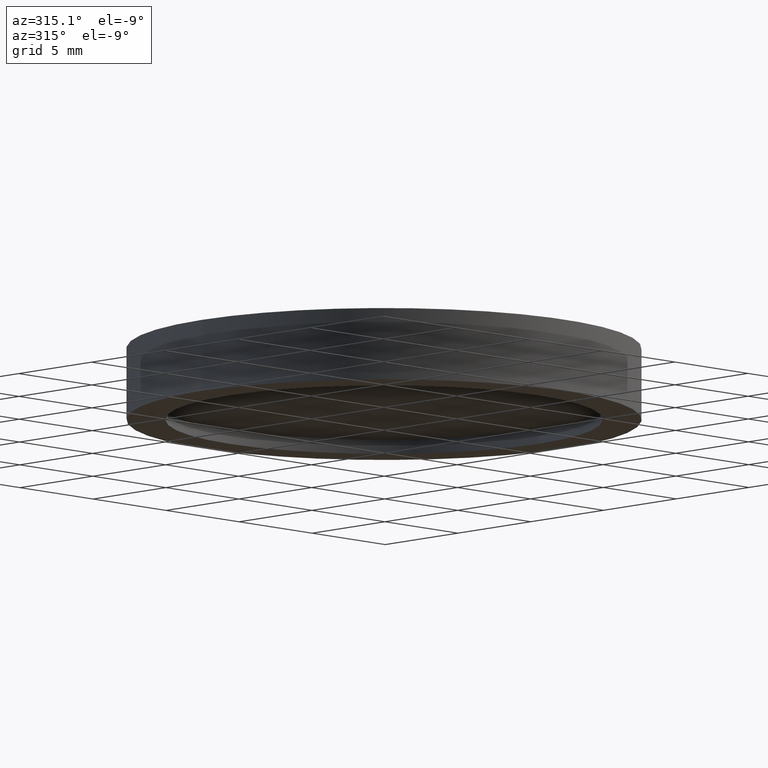
[diagram: clean part render]
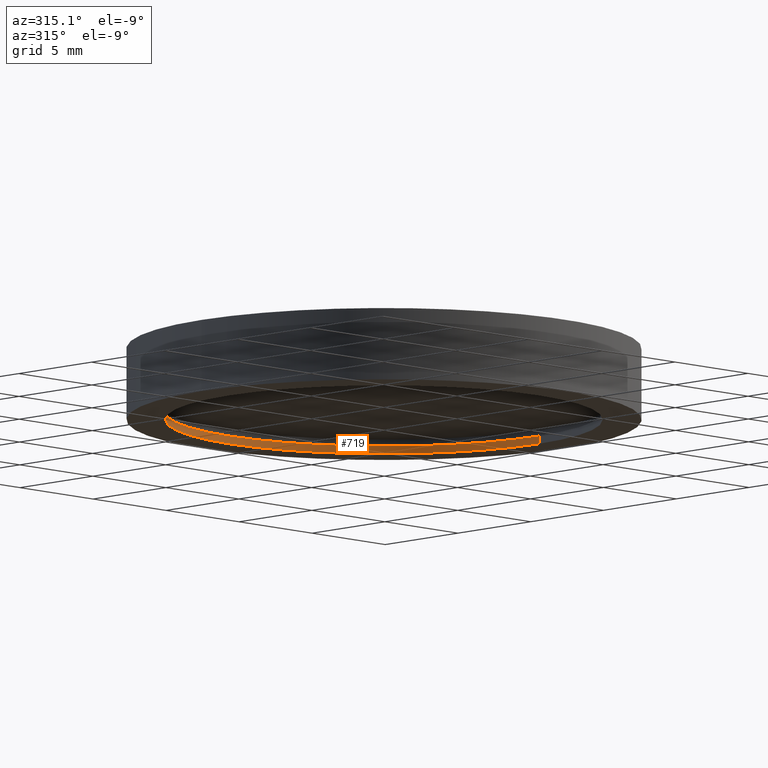
[diagram: same view with one face highlighted and labeled with its STEP entity id]
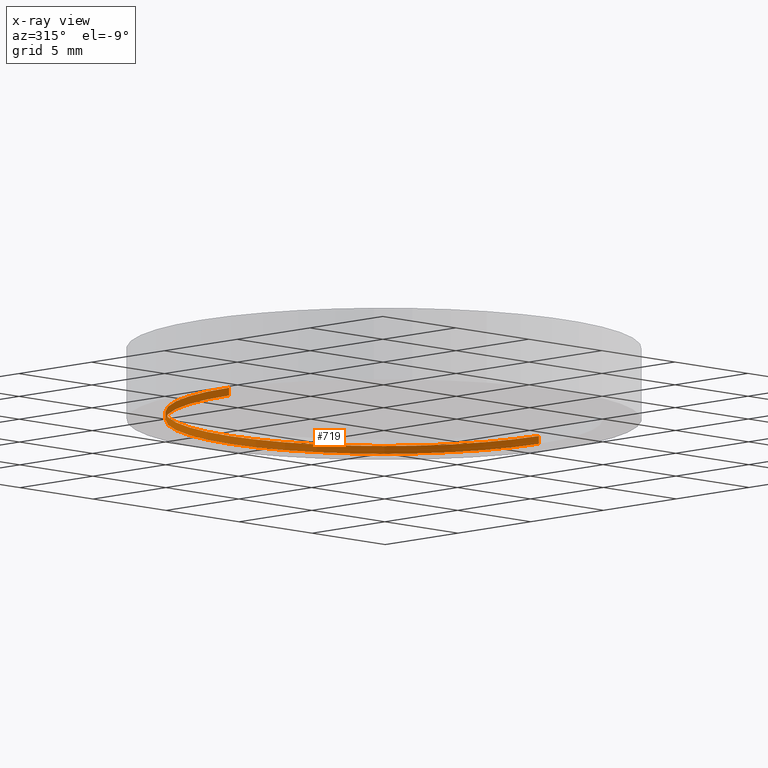
[diagram: x-ray of the same camera — body ghosted, the highlighted face saturated]
A machine part, auxiliary view. The second image highlights one B-rep face of the part: STEP entity #719.
The next image is the same camera in x-ray: the body ghosted, the highlighted face saturated — about 0% of this face is hidden behind the body in this view.
In plain terms, the highlighted cylindrical surface (partial cylindrical patch) has radius 10.6045 mm, axis along (-0, -0, -1).
Its self-contained STEP definition (entity closure, byte-faithful):
#19 = CARTESIAN_POINT ( 'NONE',  ( 10.60450000000000000, 1.298676698155810700E-015, 0.3810000000000000100 ) ) ;
#21 = ORIENTED_EDGE ( 'NONE', *, *, #385, .F. ) ;
#76 = VERTEX_POINT ( 'NONE', #713 ) ;
#121 = DIRECTION ( 'NONE',  ( 0.0000000000000000000, 0.0000000000000000000, 1.000000000000000000 ) ) ;
#146 = EDGE_CURVE ( 'NONE', #341, #443, #197, .T. ) ;
#170 = CYLINDRICAL_SURFACE ( 'NONE', #388, 10.60450000000000000 ) ;
#197 = CIRCLE ( 'NONE', #870, 10.60450000000000000 ) ;
#272 = CARTESIAN_POINT ( 'NONE',  ( 0.0000000000000000000, 0.0000000000000000000, 0.3810000000000000100 ) ) ;
#275 = DIRECTION ( 'NONE',  ( -0.0000000000000000000, -0.0000000000000000000, -1.000000000000000000 ) ) ;
#339 = DIRECTION ( 'NONE',  ( -0.0000000000000000000, -0.0000000000000000000, -1.000000000000000000 ) ) ;
#341 = VERTEX_POINT ( 'NONE', #423 ) ;
#363 = VERTEX_POINT ( 'NONE', #19 ) ;
#370 = VECTOR ( 'NONE', #973, 1000.000000000000000 ) ;
#383 = EDGE_CURVE ( 'NONE', #76, #443, #536, .T. ) ;
#385 = EDGE_CURVE ( 'NONE', #363, #341, #588, .T. ) ;
#388 = AXIS2_PLACEMENT_3D ( 'NONE', #779, #469, #544 ) ;
#393 = FACE_OUTER_BOUND ( 'NONE', #576, .T. ) ;
#423 = CARTESIAN_POINT ( 'NONE',  ( 10.60450000000000000, 1.298676698155810700E-015, 0.0000000000000000000 ) ) ;
#443 = VERTEX_POINT ( 'NONE', #667 ) ;
#454 = EDGE_CURVE ( 'NONE', #76, #363, #617, .T. ) ;
#469 = DIRECTION ( 'NONE',  ( -0.0000000000000000000, -0.0000000000000000000, -1.000000000000000000 ) ) ;
#536 = LINE ( 'NONE', #573, #370 ) ;
#544 = DIRECTION ( 'NONE',  ( -1.000000000000000000, 0.0000000000000000000, 0.0000000000000000000 ) ) ;
#573 = CARTESIAN_POINT ( 'NONE',  ( -10.60450000000000000, 0.0000000000000000000, 0.0000000000000000000 ) ) ;
#576 = EDGE_LOOP ( 'NONE', ( #21, #839, #967, #1028 ) ) ;
#588 = LINE ( 'NONE', #819, #752 ) ;
#599 = CARTESIAN_POINT ( 'NONE',  ( 0.0000000000000000000, 0.0000000000000000000, 0.0000000000000000000 ) ) ;
#617 = CIRCLE ( 'NONE', #904, 10.60450000000000000 ) ;
#667 = CARTESIAN_POINT ( 'NONE',  ( -10.60450000000000000, 0.0000000000000000000, 0.0000000000000000000 ) ) ;
#713 = CARTESIAN_POINT ( 'NONE',  ( -10.60450000000000000, 0.0000000000000000000, 0.3810000000000000100 ) ) ;
#719 = ADVANCED_FACE ( 'NONE', ( #393 ), #170, .F. ) ;
#752 = VECTOR ( 'NONE', #339, 1000.000000000000000 ) ;
#760 = DIRECTION ( 'NONE',  ( -1.000000000000000000, 0.0000000000000000000, 0.0000000000000000000 ) ) ;
#779 = CARTESIAN_POINT ( 'NONE',  ( 0.0000000000000000000, 0.0000000000000000000, 0.0000000000000000000 ) ) ;
#819 = CARTESIAN_POINT ( 'NONE',  ( 10.60450000000000000, 1.298676698155810700E-015, 0.0000000000000000000 ) ) ;
#839 = ORIENTED_EDGE ( 'NONE', *, *, #454, .F. ) ;
#870 = AXIS2_PLACEMENT_3D ( 'NONE', #599, #121, #760 ) ;
#904 = AXIS2_PLACEMENT_3D ( 'NONE', #272, #275, #914 ) ;
#914 = DIRECTION ( 'NONE',  ( -1.000000000000000000, 0.0000000000000000000, 0.0000000000000000000 ) ) ;
#967 = ORIENTED_EDGE ( 'NONE', *, *, #383, .T. ) ;
#973 = DIRECTION ( 'NONE',  ( -0.0000000000000000000, -0.0000000000000000000, -1.000000000000000000 ) ) ;
#1028 = ORIENTED_EDGE ( 'NONE', *, *, #146, .F. ) ;